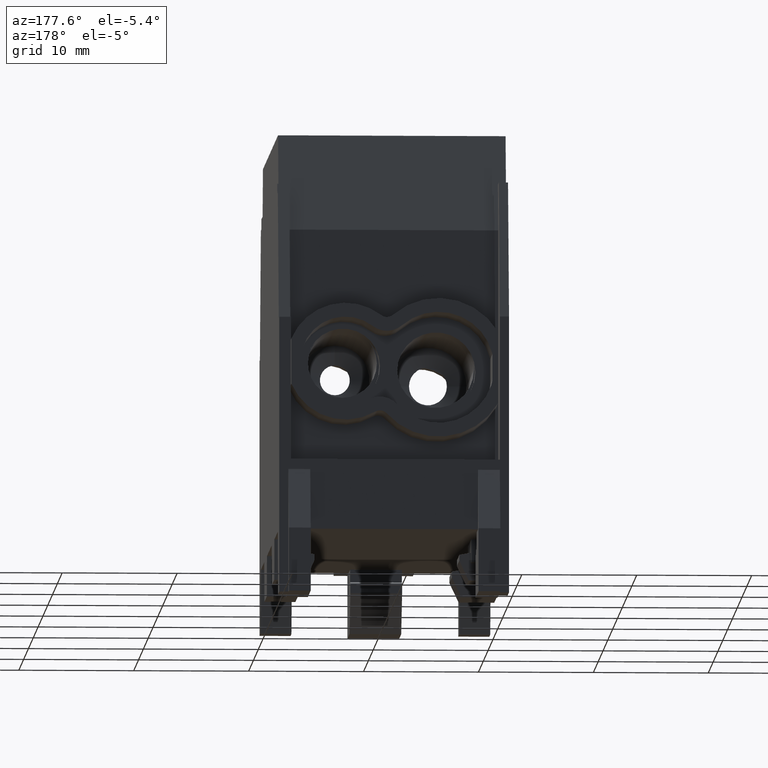
[diagram: clean part render]
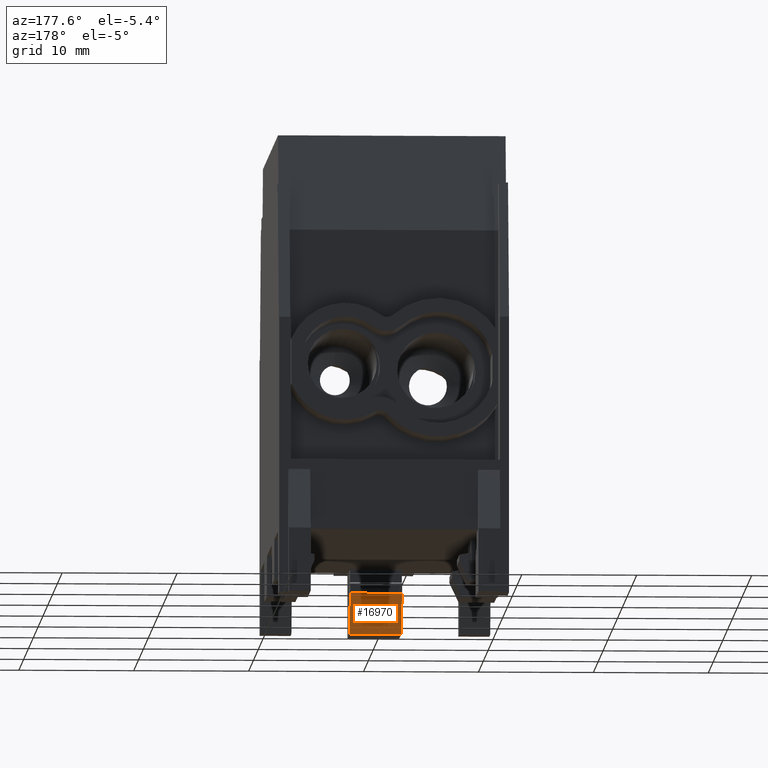
[diagram: same view with one face highlighted and labeled with its STEP entity id]
A machine part, auxiliary view. The second image highlights one B-rep face of the part: STEP entity #16970.
In plain terms, the highlighted planar face has unit normal (-0, -0.873, 0.4877).
Its self-contained STEP definition (entity closure, byte-faithful):
#9780=CARTESIAN_POINT('',(-2.25,18.5,-41.245359338705));
#9790=VERTEX_POINT('',#9780);
#9820=CARTESIAN_POINT('',(1.26313629896208E-15,18.5,-41.245359338705));
#9830=DIRECTION('',(-1.,2.77555756156289E-16,5.55111512312575E-17));
#9840=VECTOR('',#9830,1.);
#9850=LINE('',#9820,#9840);
#9860=CARTESIAN_POINT('',(2.25,18.5,-41.245359338705));
#9870=VERTEX_POINT('',#9860);
#9880=EDGE_CURVE('',#9870,#9790,#9850,.T.);
#12060=CARTESIAN_POINT('',(2.25,-4.54247769946432,1.54641276357572E-14))
;
#12070=DIRECTION('',(4.84612992917342E-17,-0.487718134381489,
0.873001157728579));
#12080=VECTOR('',#12070,1.);
#12090=LINE('',#12060,#12080);
#12100=CARTESIAN_POINT('',(2.25,16.6,-37.8444150580749));
#12110=VERTEX_POINT('',#12100);
#12120=EDGE_CURVE('',#9870,#12110,#12090,.T.);
#16740=CARTESIAN_POINT('',(-2.24999999999999,18.5,-41.245359338705));
#16750=DIRECTION('',(2.69380291574549E-16,0.873001157728579,
0.487718134381489));
#16760=DIRECTION('',(8.69076762876547E-17,0.487718134381489,
-0.873001157728579));
#16770=AXIS2_PLACEMENT_3D('',#16740,#16750,#16760);
#16780=PLANE('',#16770);
#16790=CARTESIAN_POINT('',(1.45192663125321E-15,16.6,-37.844415058075));
#16800=DIRECTION('',(1.,-4.93038065763132E-32,-5.55111512312577E-17));
#16810=VECTOR('',#16800,1.);
#16820=LINE('',#16790,#16810);
#16830=CARTESIAN_POINT('',(-2.25,16.6,-37.8444150580749));
#16840=VERTEX_POINT('',#16830);
#16850=EDGE_CURVE('',#16840,#12110,#16820,.T.);
#16860=ORIENTED_EDGE('',*,*,#16850,.F.);
#16870=ORIENTED_EDGE('',*,*,#12120,.T.);
#16880=ORIENTED_EDGE('',*,*,#9880,.F.);
#16890=CARTESIAN_POINT('',(-2.25,-4.54247769946432,1.57139278162979E-14)
);
#16900=DIRECTION('',(4.84612992917342E-17,-0.487718134381489,
0.873001157728579));
#16910=VECTOR('',#16900,1.);
#16920=LINE('',#16890,#16910);
#16930=EDGE_CURVE('',#9790,#16840,#16920,.T.);
#16940=ORIENTED_EDGE('',*,*,#16930,.F.);
#16950=EDGE_LOOP('',(#16940,#16880,#16870,#16860));
#16960=FACE_OUTER_BOUND('',#16950,.T.);
#16970=ADVANCED_FACE('',(#16960),#16780,.F.);